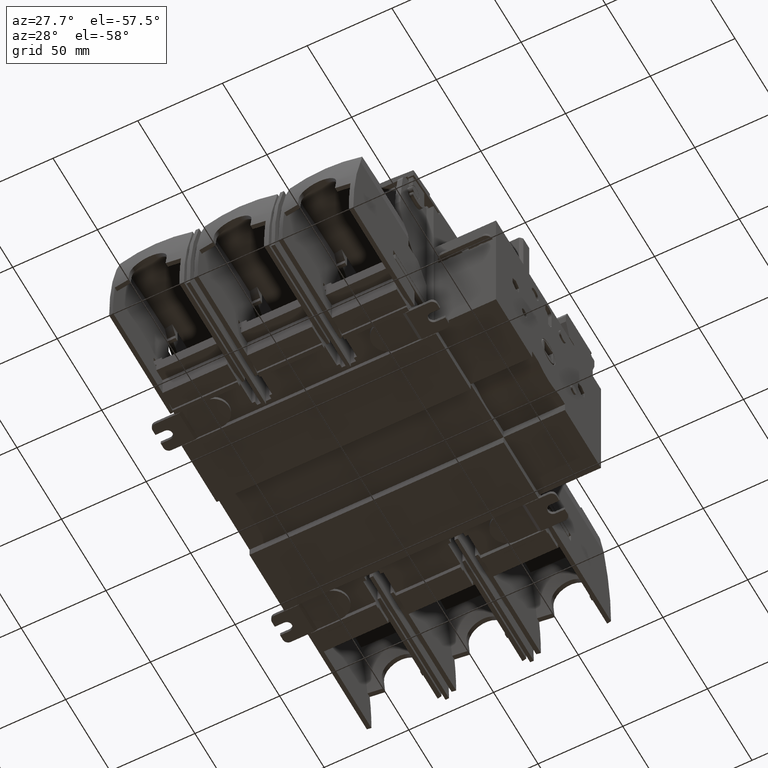
[diagram: clean part render]
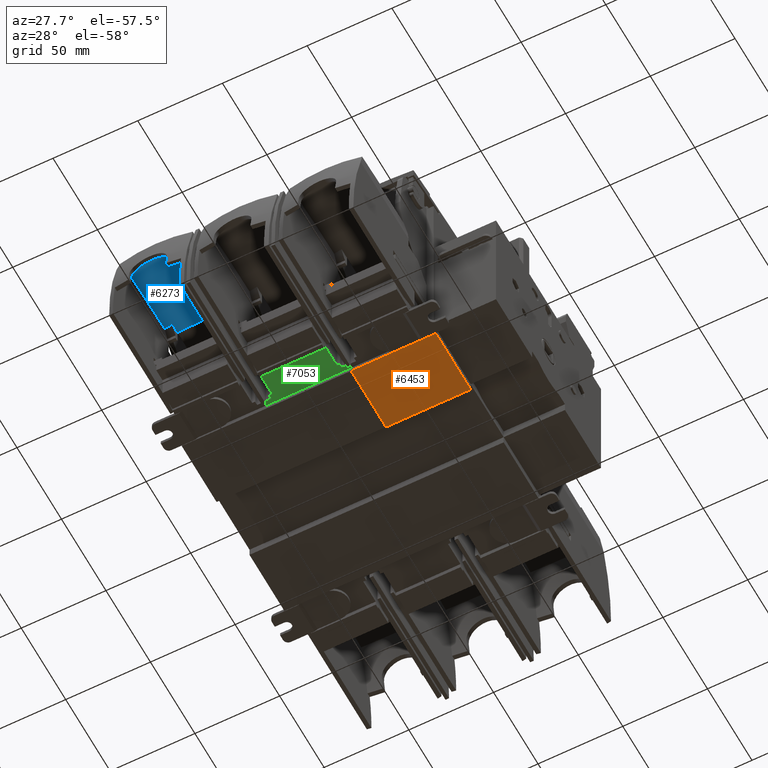
[diagram: same view with three faces highlighted in distinct colors, each labeled with its STEP entity id]
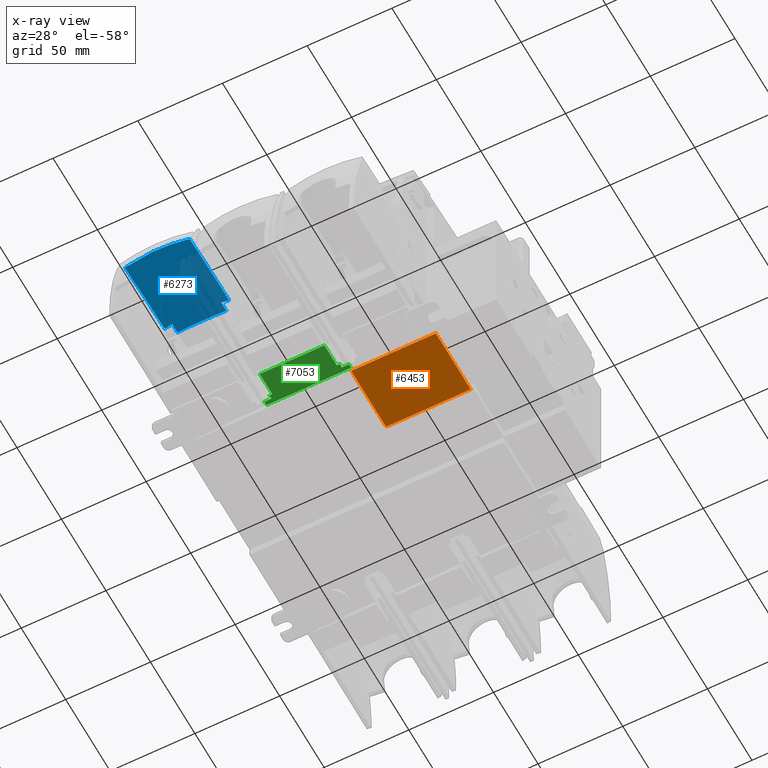
[diagram: x-ray of the same camera — body ghosted, the three highlighted faces saturated]
A machine part, auxiliary view with three faces highlighted in distinct colors.
The next image is the same camera in x-ray (body ghosted, the three faces saturated) — at least one of them is partly hidden behind the body in this view.
Their STEP definitions:

[orange] entity #6453 — the highlighted planar face has unit normal (0, 0, -1).
#1330=PLANE('',#48288);
#3536=FACE_OUTER_BOUND('',#10616,.T.);
#6453=ADVANCED_FACE('',(#3536),#1330,.T.);
#10616=EDGE_LOOP('',(#19574,#19575,#19576,#19577));
#19574=ORIENTED_EDGE('',*,*,#33562,.T.);
#19575=ORIENTED_EDGE('',*,*,#33511,.T.);
#19576=ORIENTED_EDGE('',*,*,#33563,.T.);
#19577=ORIENTED_EDGE('',*,*,#33564,.F.);
#27822=VERTEX_POINT('',#73176);
#27823=VERTEX_POINT('',#73178);
#27863=VERTEX_POINT('',#73276);
#27864=VERTEX_POINT('',#73278);
#33511=EDGE_CURVE('',#27823,#27822,#39160,.T.);
#33562=EDGE_CURVE('',#27863,#27823,#39202,.T.);
#33563=EDGE_CURVE('',#27822,#27864,#39203,.T.);
#33564=EDGE_CURVE('',#27863,#27864,#39204,.T.);
#39160=LINE('',#73177,#44233);
#39202=LINE('',#73275,#44275);
#39203=LINE('',#73277,#44276);
#39204=LINE('',#73279,#44277);
#44233=VECTOR('',#56201,1.);
#44275=VECTOR('',#56275,1.);
#44276=VECTOR('',#56276,1.);
#44277=VECTOR('',#56277,1.);
#48288=AXIS2_PLACEMENT_3D('',#73280,#56278,#56279);
#56201=DIRECTION('',(0.,1.,2.22044604925025E-016));
#56275=DIRECTION('',(-1.,0.,0.));
#56276=DIRECTION('',(1.,0.,0.));
#56277=DIRECTION('',(0.,1.,2.22044604925025E-016));
#56278=DIRECTION('',(0.,0.,-1.));
#56279=DIRECTION('',(1.,0.,0.));
#73176=CARTESIAN_POINT('',(25.,-18.5030338257066,-36.));
#73177=CARTESIAN_POINT('',(25.,-62.5,-36.));
#73178=CARTESIAN_POINT('',(25.,-57.7,-36.));
#73275=CARTESIAN_POINT('',(31.4,-57.7,-36.));
#73276=CARTESIAN_POINT('',(75.,-57.7,-36.));
#73277=CARTESIAN_POINT('',(22.5,-18.5030338257066,-36.));
#73278=CARTESIAN_POINT('',(75.,-18.5030338257066,-36.));
#73279=CARTESIAN_POINT('',(75.,-62.5,-36.));
#73280=CARTESIAN_POINT('',(31.4,-58.,-36.));

[blue] entity #6273 — the highlighted face is a freeform B-spline surface patch.
#225=B_SPLINE_SURFACE_WITH_KNOTS('',3,3,((#71058,#71059,#71060,#71061),(#71062,
#71063,#71064,#71065),(#71066,#71067,#71068,#71069),(#71070,#71071,#71072,
#71073)),.UNSPECIFIED.,.F.,.F.,.F.,(4,4),(4,4),(0.,1.),(0.,1.),.UNSPECIFIED.);
#3361=FACE_OUTER_BOUND('',#10425,.T.);
#4817=B_SPLINE_CURVE_WITH_KNOTS('',3,(#70727,#70728,#70729,#70730),.UNSPECIFIED.,
 .F.,.F.,(4,4),(0.,1.),.UNSPECIFIED.);
#4818=B_SPLINE_CURVE_WITH_KNOTS('',3,(#70732,#70733,#70734,#70735),.UNSPECIFIED.,
 .F.,.F.,(4,4),(0.,1.),.UNSPECIFIED.);
#4819=B_SPLINE_CURVE_WITH_KNOTS('',3,(#70737,#70738,#70739,#70740),.UNSPECIFIED.,
 .F.,.F.,(4,4),(0.,1.),.UNSPECIFIED.);
#4831=B_SPLINE_CURVE_WITH_KNOTS('',3,(#70851,#70852,#70853,#70854),.UNSPECIFIED.,
 .F.,.F.,(4,4),(0.,1.),.UNSPECIFIED.);
#4836=B_SPLINE_CURVE_WITH_KNOTS('',3,(#70909,#70910,#70911,#70912),.UNSPECIFIED.,
 .F.,.F.,(4,4),(0.,1.),.UNSPECIFIED.);
#4837=B_SPLINE_CURVE_WITH_KNOTS('',3,(#71025,#71026,#71027,#71028),.UNSPECIFIED.,
 .F.,.F.,(4,4),(0.,1.),.UNSPECIFIED.);
#4838=B_SPLINE_CURVE_WITH_KNOTS('',3,(#71031,#71032,#71033,#71034),.UNSPECIFIED.,
 .F.,.F.,(4,4),(0.,1.),.UNSPECIFIED.);
#4839=B_SPLINE_CURVE_WITH_KNOTS('',3,(#71035,#71036,#71037,#71038),.UNSPECIFIED.,
 .F.,.F.,(4,4),(0.,1.),.UNSPECIFIED.);
#4840=B_SPLINE_CURVE_WITH_KNOTS('',3,(#71040,#71041,#71042,#71043),.UNSPECIFIED.,
 .F.,.F.,(4,4),(0.,1.),.UNSPECIFIED.);
#4841=B_SPLINE_CURVE_WITH_KNOTS('',3,(#71045,#71046,#71047,#71048),.UNSPECIFIED.,
 .F.,.F.,(4,4),(0.,1.),.UNSPECIFIED.);
#4842=B_SPLINE_CURVE_WITH_KNOTS('',3,(#71050,#71051,#71052,#71053),.UNSPECIFIED.,
 .F.,.F.,(4,4),(0.,1.),.UNSPECIFIED.);
#4843=B_SPLINE_CURVE_WITH_KNOTS('',3,(#71054,#71055,#71056,#71057),.UNSPECIFIED.,
 .F.,.F.,(4,4),(0.,1.),.UNSPECIFIED.);
#6273=ADVANCED_FACE('',(#3361),#225,.T.);
#10425=EDGE_LOOP('',(#18537,#18538,#18539,#18540,#18541,#18542,#18543,#18544,
#18545,#18546,#18547,#18548));
#18537=ORIENTED_EDGE('',*,*,#33005,.F.);
#18538=ORIENTED_EDGE('',*,*,#33006,.T.);
#18539=ORIENTED_EDGE('',*,*,#32948,.F.);
#18540=ORIENTED_EDGE('',*,*,#32915,.T.);
#18541=ORIENTED_EDGE('',*,*,#32914,.T.);
#18542=ORIENTED_EDGE('',*,*,#32913,.T.);
#18543=ORIENTED_EDGE('',*,*,#33007,.F.);
#18544=ORIENTED_EDGE('',*,*,#33008,.F.);
#18545=ORIENTED_EDGE('',*,*,#33009,.T.);
#18546=ORIENTED_EDGE('',*,*,#33010,.T.);
#18547=ORIENTED_EDGE('',*,*,#32937,.F.);
#18548=ORIENTED_EDGE('',*,*,#33011,.F.);
#27397=VERTEX_POINT('',#70726);
#27398=VERTEX_POINT('',#70731);
#27399=VERTEX_POINT('',#70736);
#27400=VERTEX_POINT('',#70741);
#27421=VERTEX_POINT('',#70850);
#27422=VERTEX_POINT('',#70855);
#27428=VERTEX_POINT('',#70913);
#27473=VERTEX_POINT('',#71029);
#27474=VERTEX_POINT('',#71030);
#27475=VERTEX_POINT('',#71039);
#27476=VERTEX_POINT('',#71044);
#27477=VERTEX_POINT('',#71049);
#32913=EDGE_CURVE('',#27398,#27397,#4817,.T.);
#32914=EDGE_CURVE('',#27399,#27398,#4818,.T.);
#32915=EDGE_CURVE('',#27400,#27399,#4819,.T.);
#32937=EDGE_CURVE('',#27421,#27422,#4831,.T.);
#32948=EDGE_CURVE('',#27400,#27428,#4836,.T.);
#33005=EDGE_CURVE('',#27473,#27474,#4837,.T.);
#33006=EDGE_CURVE('',#27473,#27428,#4838,.T.);
#33007=EDGE_CURVE('',#27475,#27397,#4839,.T.);
#33008=EDGE_CURVE('',#27476,#27475,#4840,.T.);
#33009=EDGE_CURVE('',#27476,#27477,#4841,.T.);
#33010=EDGE_CURVE('',#27477,#27422,#4842,.T.);
#33011=EDGE_CURVE('',#27474,#27421,#4843,.T.);
#70726=CARTESIAN_POINT('',(-36.0006512256134,-82.5059071861027,32.1242672042496));
#70727=CARTESIAN_POINT('',(-41.4549142948088,-82.5194059344495,32.6363571662466));
#70728=CARTESIAN_POINT('',(-39.6332398557107,-82.5104902677443,32.5066656412137));
#70729=CARTESIAN_POINT('',(-37.8145497875673,-82.505984114139,32.3357097637903));
#70730=CARTESIAN_POINT('',(-36.0007418497505,-82.5059040574712,32.1234913048694));
#70731=CARTESIAN_POINT('',(-41.4547551795039,-82.5194149626351,32.6385833279425));
#70732=CARTESIAN_POINT('',(-58.4175467421926,-82.5194056804828,32.654260954854));
#70733=CARTESIAN_POINT('',(-52.7720004156703,-82.498237305059,33.0443885295118));
#70734=CARTESIAN_POINT('',(-47.0989722371152,-82.4982399232079,33.0383757202588));
#70735=CARTESIAN_POINT('',(-41.4549137450192,-82.5194059255398,32.6363571271303));
#70736=CARTESIAN_POINT('',(-58.4177049739122,-82.5194149670658,32.6565512276468));
#70737=CARTESIAN_POINT('',(-64.1269375953554,-82.5059040574703,32.1234913230582));
#70738=CARTESIAN_POINT('',(-62.2284310027608,-82.5055622627258,32.3456213750467));
#70739=CARTESIAN_POINT('',(-60.3245756763384,-82.5100690259078,32.5225452251082));
#70740=CARTESIAN_POINT('',(-58.4175478400043,-82.5194056703021,32.6542608790492));
#70741=CARTESIAN_POINT('',(-64.1270283748464,-82.5059071860991,32.1242672042618));
#70850=CARTESIAN_POINT('',(-69.2380730411183,-132.793088185427,28.7136967997116));
#70851=CARTESIAN_POINT('',(-69.238072587906,-132.793088727148,28.7136954052423));
#70852=CARTESIAN_POINT('',(-56.58613594587,-134.322204433175,30.6006266411552));
#70853=CARTESIAN_POINT('',(-43.5414775517651,-134.322196443961,30.6006167824527));
#70854=CARTESIAN_POINT('',(-30.8896070126572,-132.793088727148,28.7136954052422));
#70855=CARTESIAN_POINT('',(-30.8896063286534,-132.793087832901,28.7136977399989));
#70909=CARTESIAN_POINT('',(-64.1269375968009,-82.5059040160599,32.123491323056));
#70910=CARTESIAN_POINT('',(-64.2559021934432,-82.5104075590119,32.1083840742368));
#70911=CARTESIAN_POINT('',(-64.3848425524628,-82.5149102555674,32.093068205073));
#70912=CARTESIAN_POINT('',(-64.5137576529528,-82.5194120700756,32.0775437538786));
#70913=CARTESIAN_POINT('',(-64.5138398002827,-82.5194149387235,32.0782267374682));
#71025=CARTESIAN_POINT('',(-64.5138398002821,-88.3934551839136,32.019731695807));
#71026=CARTESIAN_POINT('',(-66.0311406146459,-88.2949000169261,31.8387454375494));
#71027=CARTESIAN_POINT('',(-67.5442948436806,-88.1787479190972,31.6291787640107));
#71028=CARTESIAN_POINT('',(-69.0508238888489,-88.0427667244955,31.3913757811319));
#71029=CARTESIAN_POINT('',(-64.5138398002821,-88.3934551839136,32.019731695807));
#71030=CARTESIAN_POINT('',(-69.0508298072723,-88.0427828815649,31.391404036535));
#71031=CARTESIAN_POINT('',(-64.5138398002821,-88.3934551839136,32.019731695807));
#71032=CARTESIAN_POINT('',(-64.5138398002821,-86.4355741510582,32.0503155462733));
#71033=CARTESIAN_POINT('',(-64.5138398002821,-84.4775163126823,32.0695853362209));
#71034=CARTESIAN_POINT('',(-64.5138398002821,-82.5194121261763,32.0775338727703));
#71035=CARTESIAN_POINT('',(-35.6139219476113,-82.5194120700756,32.0775437538787));
#71036=CARTESIAN_POINT('',(-35.7428370480666,-82.5149102555686,32.093068205069));
#71037=CARTESIAN_POINT('',(-35.8717774070514,-82.5104075590142,32.1083840742286));
#71038=CARTESIAN_POINT('',(-36.0007420036589,-82.5059040160635,32.1234913230439));
#71039=CARTESIAN_POINT('',(-35.6138398002815,-82.5194149387235,32.0782267374683));
#71040=CARTESIAN_POINT('',(-35.6138398002815,-88.3934551839136,32.0197316958071));
#71041=CARTESIAN_POINT('',(-35.6138398002815,-86.4355741510582,32.0503155462733));
#71042=CARTESIAN_POINT('',(-35.6138398002815,-84.4775163126823,32.0695853362209));
#71043=CARTESIAN_POINT('',(-35.6138398002815,-82.5194121261763,32.0775338727703));
#71044=CARTESIAN_POINT('',(-35.6138398002815,-88.3934551839136,32.0197316958071));
#71045=CARTESIAN_POINT('',(-35.6138398002815,-88.3934551839136,32.0197316958071));
#71046=CARTESIAN_POINT('',(-34.0965389859176,-88.2949000169262,31.8387454375495));
#71047=CARTESIAN_POINT('',(-32.583384756883,-88.1787479190972,31.6291787640107));
#71048=CARTESIAN_POINT('',(-31.0768557117146,-88.0427667244955,31.3913757811319));
#71049=CARTESIAN_POINT('',(-31.0768497932912,-88.0427828815651,31.3914040365351));
#71050=CARTESIAN_POINT('',(-31.0768477120095,-88.0427824294094,31.3913742728206));
#71051=CARTESIAN_POINT('',(-31.061044273393,-102.992237064729,31.1653745714578));
#71052=CARTESIAN_POINT('',(-30.998578182581,-117.923748857522,30.2720678543929));
#71053=CARTESIAN_POINT('',(-30.8896061716856,-132.793086546387,28.7136954952561));
#71054=CARTESIAN_POINT('',(-69.050831888554,-88.0427824294091,31.3913742728206));
#71055=CARTESIAN_POINT('',(-69.0666353271705,-102.99223706473,31.1653745714578));
#71056=CARTESIAN_POINT('',(-69.1291014179825,-117.923748857523,30.2720678543928));
#71057=CARTESIAN_POINT('',(-69.2380734288779,-132.793086546389,28.7136954952559));
#71058=CARTESIAN_POINT('',(-30.6615287588416,-134.621879321913,28.4837330065574));
#71059=CARTESIAN_POINT('',(-30.6615287588416,-117.238135668285,30.3488736225217));
#71060=CARTESIAN_POINT('',(-30.6615287588416,-99.7580038056083,31.3153325300489));
#71061=CARTESIAN_POINT('',(-30.6615287588416,-82.274601088703,31.3779613642571));
#71062=CARTESIAN_POINT('',(-43.4825527423757,-134.614563663937,30.5835637173866));
#71063=CARTESIAN_POINT('',(-43.4825527423757,-117.158515017123,32.4484524279962));
#71064=CARTESIAN_POINT('',(-43.4825527423757,-99.6060913210345,33.4109215177847));
#71065=CARTESIAN_POINT('',(-43.4825527423757,-82.0507950319516,33.4658438757875));
#71066=CARTESIAN_POINT('',(-56.6451268581876,-134.614563663937,30.5835637173866));
#71067=CARTESIAN_POINT('',(-56.6451268581876,-117.158515017123,32.4484524279962));
#71068=CARTESIAN_POINT('',(-56.6451268581876,-99.6060913210345,33.4109215177847));
#71069=CARTESIAN_POINT('',(-56.6451268581876,-82.0507950319516,33.4658438757875));
#71070=CARTESIAN_POINT('',(-69.4661508417218,-134.621879321913,28.4837330065574));
#71071=CARTESIAN_POINT('',(-69.4661508417218,-117.238135668285,30.3488736225217));
#71072=CARTESIAN_POINT('',(-69.4661508417218,-99.7580038056083,31.3153325300489));
#71073=CARTESIAN_POINT('',(-69.4661508417218,-82.274601088703,31.3779613642571));

[green] entity #7053 — the highlighted planar face has unit normal (0, 0, 1).
#1814=PLANE('',#49112);
#4060=FACE_OUTER_BOUND('',#11324,.T.);
#7053=ADVANCED_FACE('',(#4060),#1814,.F.);
#11324=EDGE_LOOP('',(#22714,#22715,#22716,#22717,#22718,#22719,#22720,#22721,
#22722,#22723,#22724,#22725));
#22714=ORIENTED_EDGE('',*,*,#35127,.T.);
#22715=ORIENTED_EDGE('',*,*,#35128,.F.);
#22716=ORIENTED_EDGE('',*,*,#35129,.F.);
#22717=ORIENTED_EDGE('',*,*,#35130,.F.);
#22718=ORIENTED_EDGE('',*,*,#35131,.F.);
#22719=ORIENTED_EDGE('',*,*,#35040,.F.);
#22720=ORIENTED_EDGE('',*,*,#35095,.T.);
#22721=ORIENTED_EDGE('',*,*,#35132,.F.);
#22722=ORIENTED_EDGE('',*,*,#35133,.F.);
#22723=ORIENTED_EDGE('',*,*,#35134,.T.);
#22724=ORIENTED_EDGE('',*,*,#35135,.T.);
#22725=ORIENTED_EDGE('',*,*,#35136,.T.);
#28858=VERTEX_POINT('',#76469);
#28859=VERTEX_POINT('',#76471);
#28908=VERTEX_POINT('',#76586);
#28934=VERTEX_POINT('',#76648);
#28935=VERTEX_POINT('',#76649);
#28936=VERTEX_POINT('',#76651);
#28937=VERTEX_POINT('',#76653);
#28938=VERTEX_POINT('',#76655);
#28939=VERTEX_POINT('',#76658);
#28940=VERTEX_POINT('',#76660);
#28941=VERTEX_POINT('',#76662);
#28942=VERTEX_POINT('',#76664);
#35040=EDGE_CURVE('',#28858,#28859,#40451,.T.);
#35095=EDGE_CURVE('',#28858,#28908,#40500,.T.);
#35127=EDGE_CURVE('',#28934,#28935,#40523,.T.);
#35128=EDGE_CURVE('',#28936,#28935,#40524,.T.);
#35129=EDGE_CURVE('',#28937,#28936,#40525,.T.);
#35130=EDGE_CURVE('',#28938,#28937,#40526,.T.);
#35131=EDGE_CURVE('',#28859,#28938,#40527,.T.);
#35132=EDGE_CURVE('',#28939,#28908,#40528,.T.);
#35133=EDGE_CURVE('',#28940,#28939,#40529,.T.);
#35134=EDGE_CURVE('',#28940,#28941,#40530,.T.);
#35135=EDGE_CURVE('',#28941,#28942,#40531,.T.);
#35136=EDGE_CURVE('',#28942,#28934,#40532,.T.);
#40451=LINE('',#76470,#45524);
#40500=LINE('',#76587,#45573);
#40523=LINE('',#76647,#45596);
#40524=LINE('',#76650,#45597);
#40525=LINE('',#76652,#45598);
#40526=LINE('',#76654,#45599);
#40527=LINE('',#76656,#45600);
#40528=LINE('',#76657,#45601);
#40529=LINE('',#76659,#45602);
#40530=LINE('',#76661,#45603);
#40531=LINE('',#76663,#45604);
#40532=LINE('',#76665,#45605);
#45524=VECTOR('',#59120,1.);
#45573=VECTOR('',#59197,1.);
#45596=VECTOR('',#59244,1.);
#45597=VECTOR('',#59245,1.);
#45598=VECTOR('',#59246,1.);
#45599=VECTOR('',#59247,1.);
#45600=VECTOR('',#59248,1.);
#45601=VECTOR('',#59249,1.);
#45602=VECTOR('',#59250,1.);
#45603=VECTOR('',#59251,1.);
#45604=VECTOR('',#59252,1.);
#45605=VECTOR('',#59253,1.);
#49112=AXIS2_PLACEMENT_3D('',#76666,#59254,#59255);
#59120=DIRECTION('',(1.,0.,1.55085354917865E-015));
#59197=DIRECTION('',(0.,1.,0.));
#59244=DIRECTION('',(0.,-1.,0.));
#59245=DIRECTION('',(1.,0.,2.23115559611165E-016));
#59246=DIRECTION('',(0.,-1.,0.));
#59247=DIRECTION('',(1.,0.,1.55085354917865E-015));
#59248=DIRECTION('',(0.,-1.,0.));
#59249=DIRECTION('',(-1.,0.,0.));
#59250=DIRECTION('',(0.,1.,0.));
#59251=DIRECTION('',(-1.,0.,1.80854548022221E-016));
#59252=DIRECTION('',(0.,-1.,0.));
#59253=DIRECTION('',(-1.,0.,1.80854548022221E-016));
#59254=DIRECTION('',(0.,0.,1.));
#59255=DIRECTION('',(-1.,0.,0.));
#76469=CARTESIAN_POINT('',(-25.,-60.2,-33.));
#76470=CARTESIAN_POINT('',(-20.8,-60.2,-33.));
#76471=CARTESIAN_POINT('',(-20.8,-60.2,-33.));
#76586=CARTESIAN_POINT('',(-25.,-57.7,-33.));
#76587=CARTESIAN_POINT('',(-25.,-18.5030338257067,-33.));
#76647=CARTESIAN_POINT('',(19.1,-62.5,-33.));
#76648=CARTESIAN_POINT('',(19.1,-62.5000000000001,-33.));
#76649=CARTESIAN_POINT('',(19.1,-76.5,-33.));
#76650=CARTESIAN_POINT('',(-19.1,-76.5,-33.));
#76651=CARTESIAN_POINT('',(-19.1,-76.5,-33.));
#76652=CARTESIAN_POINT('',(-19.1,-62.5000000000129,-33.));
#76653=CARTESIAN_POINT('',(-19.1,-62.5000000000001,-33.));
#76654=CARTESIAN_POINT('',(-40.0645314652454,-62.5,-33.));
#76655=CARTESIAN_POINT('',(-20.8,-62.5,-33.));
#76656=CARTESIAN_POINT('',(-20.8,-100.728546699506,-33.));
#76657=CARTESIAN_POINT('',(-0.999999999978747,-57.7,-33.));
#76658=CARTESIAN_POINT('',(25.,-57.7,-33.));
#76659=CARTESIAN_POINT('',(25.,-69.5,-33.));
#76660=CARTESIAN_POINT('',(25.,-60.2,-33.));
#76661=CARTESIAN_POINT('',(20.8,-60.2,-33.));
#76662=CARTESIAN_POINT('',(20.8,-60.2,-33.));
#76663=CARTESIAN_POINT('',(20.8,-100.728546699506,-33.));
#76664=CARTESIAN_POINT('',(20.8,-62.5,-33.));
#76665=CARTESIAN_POINT('',(29.9883857560487,-62.5,-33.));
#76666=CARTESIAN_POINT('',(-12.,-69.5,-33.));